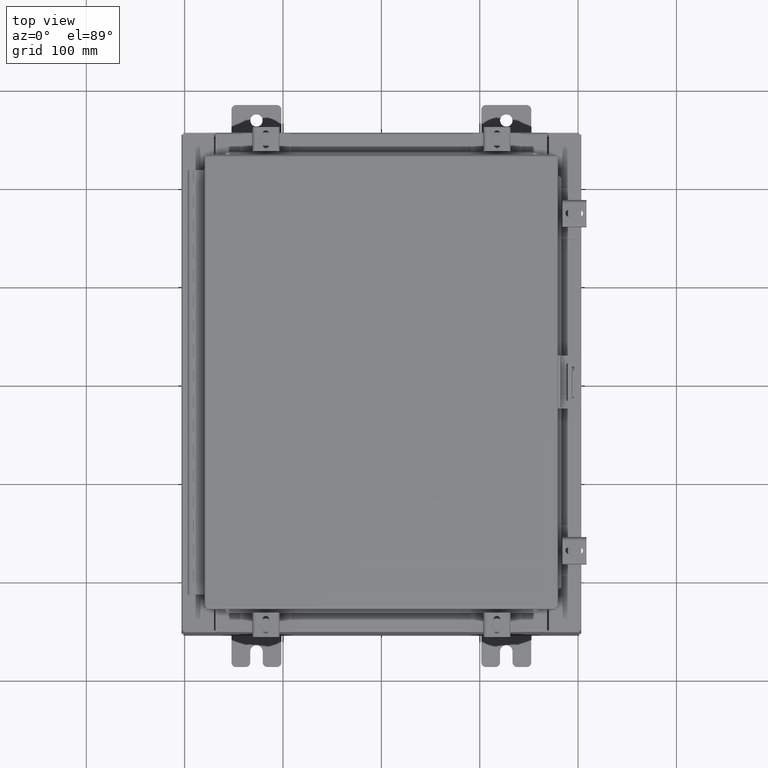
[diagram: clean part render]
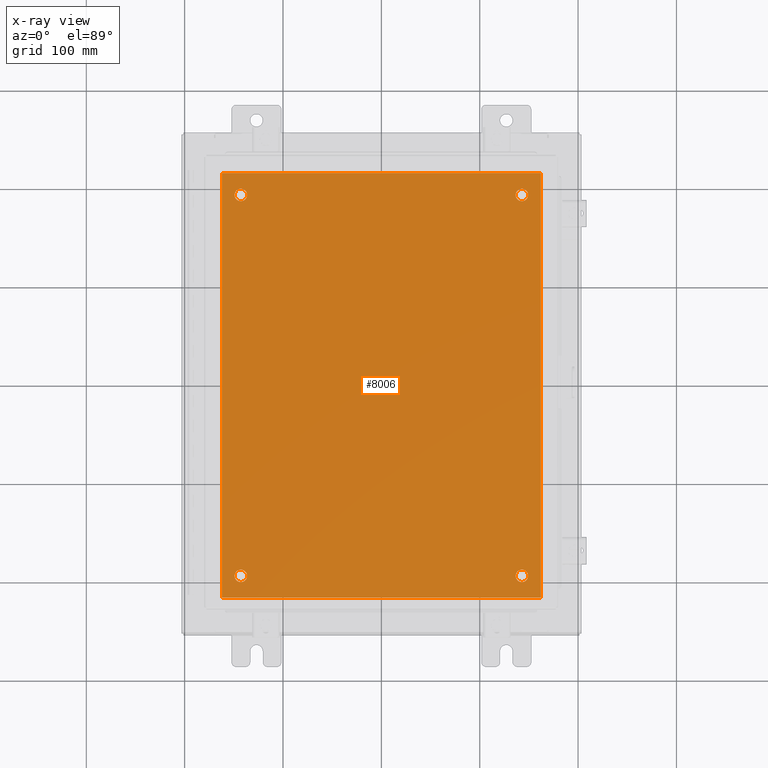
[diagram: x-ray — body ghosted, one internal face saturated and labeled with its STEP entity id]
A machine part, top view, then the same camera in x-ray: the body is ghosted and one INTERNAL B-rep face — a face not visible from any outside direction — is saturated and labeled: STEP entity #8006.
In plain terms, the highlighted planar face has unit normal (0, 0, -1).
Its self-contained STEP definition (entity closure, byte-faithful):
#309 = VERTEX_POINT ( 'NONE', #16712 ) ;
#627 = VERTEX_POINT ( 'NONE', #9467 ) ;
#851 = CIRCLE ( 'NONE', #9223, 0.2499999999999987000 ) ;
#1011 = ORIENTED_EDGE ( 'NONE', *, *, #15867, .T. ) ;
#1239 = CARTESIAN_POINT ( 'NONE',  ( 6.383000000000000900, 8.500000000000000000, -0.1039999999999999800 ) ) ;
#1277 = CARTESIAN_POINT ( 'NONE',  ( -5.625000000000000000, -7.625000000000001800, -0.1039999999999999800 ) ) ;
#1793 = CIRCLE ( 'NONE', #7359, 0.2499999999999998100 ) ;
#2144 = CARTESIAN_POINT ( 'NONE',  ( 5.625000000000004400, -7.625000000000000900, -0.1039999999999999800 ) ) ;
#2332 = EDGE_LOOP ( 'NONE', ( #1011, #3359 ) ) ;
#2489 = CIRCLE ( 'NONE', #3083, 0.2499999999999998100 ) ;
#2552 = CIRCLE ( 'NONE', #14553, 0.2499999999999998100 ) ;
#2636 = DIRECTION ( 'NONE',  ( -0.0000000000000000000, -0.0000000000000000000, 1.000000000000000000 ) ) ;
#2757 = FACE_BOUND ( 'NONE', #2332, .T. ) ;
#2817 = ORIENTED_EDGE ( 'NONE', *, *, #19691, .F. ) ;
#3083 = AXIS2_PLACEMENT_3D ( 'NONE', #4464, #20383, #6772 ) ;
#3359 = ORIENTED_EDGE ( 'NONE', *, *, #26517, .T. ) ;
#3566 = DIRECTION ( 'NONE',  ( -0.0000000000000000000, -0.0000000000000000000, 1.000000000000000000 ) ) ;
#4116 = ORIENTED_EDGE ( 'NONE', *, *, #28853, .T. ) ;
#4251 = CARTESIAN_POINT ( 'NONE',  ( 5.625000000000000000, 7.625000000000002700, -0.1039999999999999800 ) ) ;
#4424 = DIRECTION ( 'NONE',  ( -1.000000000000000000, 0.0000000000000000000, 0.0000000000000000000 ) ) ;
#4464 = CARTESIAN_POINT ( 'NONE',  ( -5.625000000000000000, 7.625000000000001800, -0.1039999999999999800 ) ) ;
#4573 = VERTEX_POINT ( 'NONE', #20140 ) ;
#5062 = EDGE_CURVE ( 'NONE', #6492, #4573, #2552, .T. ) ;
#6273 = AXIS2_PLACEMENT_3D ( 'NONE', #4251, #20146, #6552 ) ;
#6313 = LINE ( 'NONE', #19815, #25049 ) ;
#6492 = VERTEX_POINT ( 'NONE', #7915 ) ;
#6552 = DIRECTION ( 'NONE',  ( -1.000000000000000000, 0.0000000000000000000, 0.0000000000000000000 ) ) ;
#6772 = DIRECTION ( 'NONE',  ( -1.000000000000000000, 0.0000000000000000000, 0.0000000000000000000 ) ) ;
#6817 = VERTEX_POINT ( 'NONE', #27276 ) ;
#6879 = CARTESIAN_POINT ( 'NONE',  ( -6.382999999999998200, -8.499999999999998200, -0.1039999999999998100 ) ) ;
#7069 = CIRCLE ( 'NONE', #24972, 0.2499999999999987000 ) ;
#7199 = DIRECTION ( 'NONE',  ( 0.0000000000000000000, 0.0000000000000000000, -1.000000000000000000 ) ) ;
#7292 = EDGE_CURVE ( 'NONE', #19264, #26018, #14102, .T. ) ;
#7359 = AXIS2_PLACEMENT_3D ( 'NONE', #16200, #2636, #18543 ) ;
#7368 = DIRECTION ( 'NONE',  ( 1.000000000000000000, 0.0000000000000000000, 0.0000000000000000000 ) ) ;
#7616 = VERTEX_POINT ( 'NONE', #12019 ) ;
#7803 = AXIS2_PLACEMENT_3D ( 'NONE', #27575, #7199, #23088 ) ;
#7811 = EDGE_LOOP ( 'NONE', ( #21386, #27736 ) ) ;
#7915 = CARTESIAN_POINT ( 'NONE',  ( -5.375000000000000900, -7.625000000000001800, -0.1039999999999999800 ) ) ;
#8006 = ADVANCED_FACE ( 'NONE', ( #20929, #2757, #14810, #26255, #20177 ), #16171, .T. ) ;
#8089 = VECTOR ( 'NONE', #15541, 39.37007874015748100 ) ;
#8336 = DIRECTION ( 'NONE',  ( -0.0000000000000000000, -0.0000000000000000000, 1.000000000000000000 ) ) ;
#8659 = VECTOR ( 'NONE', #7368, 39.37007874015748100 ) ;
#9223 = AXIS2_PLACEMENT_3D ( 'NONE', #2144, #18018, #4424 ) ;
#9369 = CARTESIAN_POINT ( 'NONE',  ( -5.625000000000000000, 7.625000000000001800, -0.1039999999999999800 ) ) ;
#9467 = CARTESIAN_POINT ( 'NONE',  ( 5.874999999999999100, 7.625000000000002700, -0.1039999999999999800 ) ) ;
#10994 = ORIENTED_EDGE ( 'NONE', *, *, #20101, .T. ) ;
#11127 = EDGE_CURVE ( 'NONE', #6817, #17713, #2489, .T. ) ;
#11475 = CIRCLE ( 'NONE', #6273, 0.2499999999999987000 ) ;
#11626 = DIRECTION ( 'NONE',  ( -1.000000000000000000, 0.0000000000000000000, 0.0000000000000000000 ) ) ;
#12019 = CARTESIAN_POINT ( 'NONE',  ( 6.383000000000000900, -8.499999999999998200, -0.1039999999999999800 ) ) ;
#12499 = VECTOR ( 'NONE', #17394, 39.37007874015748100 ) ;
#12570 = DIRECTION ( 'NONE',  ( -0.0000000000000000000, -0.0000000000000000000, 1.000000000000000000 ) ) ;
#13051 = DIRECTION ( 'NONE',  ( 0.0000000000000000000, -1.000000000000000000, 0.0000000000000000000 ) ) ;
#13116 = ORIENTED_EDGE ( 'NONE', *, *, #11127, .T. ) ;
#13295 = CARTESIAN_POINT ( 'NONE',  ( -6.499999999999998200, 8.500000000000000000, -0.1039999999999999800 ) ) ;
#14102 = LINE ( 'NONE', #13295, #8089 ) ;
#14432 = ORIENTED_EDGE ( 'NONE', *, *, #21352, .F. ) ;
#14553 = AXIS2_PLACEMENT_3D ( 'NONE', #1277, #3566, #15965 ) ;
#14810 = FACE_BOUND ( 'NONE', #26331, .T. ) ;
#15388 = LINE ( 'NONE', #18690, #8659 ) ;
#15540 = ORIENTED_EDGE ( 'NONE', *, *, #22412, .T. ) ;
#15541 = DIRECTION ( 'NONE',  ( -1.000000000000000000, -0.0000000000000000000, -0.0000000000000000000 ) ) ;
#15867 = EDGE_CURVE ( 'NONE', #309, #23147, #851, .T. ) ;
#15965 = DIRECTION ( 'NONE',  ( -1.000000000000000000, 0.0000000000000000000, 0.0000000000000000000 ) ) ;
#16171 = PLANE ( 'NONE',  #7803 ) ;
#16200 = CARTESIAN_POINT ( 'NONE',  ( -5.625000000000000000, -7.625000000000001800, -0.1039999999999999800 ) ) ;
#16532 = ORIENTED_EDGE ( 'NONE', *, *, #23847, .F. ) ;
#16712 = CARTESIAN_POINT ( 'NONE',  ( 5.875000000000003600, -7.625000000000000900, -0.1039999999999999800 ) ) ;
#17394 = DIRECTION ( 'NONE',  ( 0.0000000000000000000, 1.000000000000000000, 0.0000000000000000000 ) ) ;
#17713 = VERTEX_POINT ( 'NONE', #21795 ) ;
#18018 = DIRECTION ( 'NONE',  ( -0.0000000000000000000, -0.0000000000000000000, 1.000000000000000000 ) ) ;
#18543 = DIRECTION ( 'NONE',  ( -1.000000000000000000, 0.0000000000000000000, 0.0000000000000000000 ) ) ;
#18690 = CARTESIAN_POINT ( 'NONE',  ( -6.499999999999998200, -8.499999999999998200, -0.1039999999999999800 ) ) ;
#19264 = VERTEX_POINT ( 'NONE', #1239 ) ;
#19691 = EDGE_CURVE ( 'NONE', #23075, #7616, #15388, .T. ) ;
#19698 = CARTESIAN_POINT ( 'NONE',  ( 6.383000000000002700, -8.499999999999998200, -0.1039999999999998100 ) ) ;
#19815 = CARTESIAN_POINT ( 'NONE',  ( -6.382999999999998200, 8.500000000000000000, -0.1039999999999998100 ) ) ;
#20101 = EDGE_CURVE ( 'NONE', #27701, #627, #11475, .T. ) ;
#20140 = CARTESIAN_POINT ( 'NONE',  ( -5.875000000000000000, -7.625000000000001800, -0.1039999999999999800 ) ) ;
#20146 = DIRECTION ( 'NONE',  ( -0.0000000000000000000, -0.0000000000000000000, 1.000000000000000000 ) ) ;
#20177 = FACE_OUTER_BOUND ( 'NONE', #21361, .T. ) ;
#20383 = DIRECTION ( 'NONE',  ( -0.0000000000000000000, -0.0000000000000000000, 1.000000000000000000 ) ) ;
#20929 = FACE_BOUND ( 'NONE', #7811, .T. ) ;
#21352 = EDGE_CURVE ( 'NONE', #7616, #19264, #24624, .T. ) ;
#21361 = EDGE_LOOP ( 'NONE', ( #2817, #16532, #24896, #14432 ) ) ;
#21386 = ORIENTED_EDGE ( 'NONE', *, *, #5062, .T. ) ;
#21795 = CARTESIAN_POINT ( 'NONE',  ( -5.375000000000000900, 7.625000000000001800, -0.1039999999999999800 ) ) ;
#21956 = CARTESIAN_POINT ( 'NONE',  ( 5.625000000000000000, 7.625000000000002700, -0.1039999999999999800 ) ) ;
#22412 = EDGE_CURVE ( 'NONE', #17713, #6817, #23143, .T. ) ;
#23075 = VERTEX_POINT ( 'NONE', #6879 ) ;
#23088 = DIRECTION ( 'NONE',  ( -1.000000000000000000, 0.0000000000000000000, -0.0000000000000000000 ) ) ;
#23102 = AXIS2_PLACEMENT_3D ( 'NONE', #9369, #25315, #11626 ) ;
#23143 = CIRCLE ( 'NONE', #23102, 0.2499999999999998100 ) ;
#23147 = VERTEX_POINT ( 'NONE', #25376 ) ;
#23847 = EDGE_CURVE ( 'NONE', #26018, #23075, #6313, .T. ) ;
#24262 = DIRECTION ( 'NONE',  ( -1.000000000000000000, 0.0000000000000000000, 0.0000000000000000000 ) ) ;
#24624 = LINE ( 'NONE', #19698, #12499 ) ;
#24896 = ORIENTED_EDGE ( 'NONE', *, *, #7292, .F. ) ;
#24972 = AXIS2_PLACEMENT_3D ( 'NONE', #21956, #8336, #24262 ) ;
#25046 = CARTESIAN_POINT ( 'NONE',  ( -6.382999999999998200, 8.500000000000000000, -0.1039999999999998100 ) ) ;
#25049 = VECTOR ( 'NONE', #13051, 39.37007874015748100 ) ;
#25085 = EDGE_LOOP ( 'NONE', ( #15540, #13116 ) ) ;
#25315 = DIRECTION ( 'NONE',  ( -0.0000000000000000000, -0.0000000000000000000, 1.000000000000000000 ) ) ;
#25376 = CARTESIAN_POINT ( 'NONE',  ( 5.375000000000006200, -7.625000000000000900, -0.1039999999999999800 ) ) ;
#26018 = VERTEX_POINT ( 'NONE', #25046 ) ;
#26219 = CARTESIAN_POINT ( 'NONE',  ( 5.625000000000004400, -7.625000000000000900, -0.1039999999999999800 ) ) ;
#26255 = FACE_BOUND ( 'NONE', #25085, .T. ) ;
#26331 = EDGE_LOOP ( 'NONE', ( #4116, #10994 ) ) ;
#26517 = EDGE_CURVE ( 'NONE', #23147, #309, #27412, .T. ) ;
#26797 = AXIS2_PLACEMENT_3D ( 'NONE', #26219, #12570, #28520 ) ;
#26868 = EDGE_CURVE ( 'NONE', #4573, #6492, #1793, .T. ) ;
#27276 = CARTESIAN_POINT ( 'NONE',  ( -5.875000000000000000, 7.625000000000001800, -0.1039999999999999800 ) ) ;
#27412 = CIRCLE ( 'NONE', #26797, 0.2499999999999987000 ) ;
#27575 = CARTESIAN_POINT ( 'NONE',  ( 0.0000000000000000000, 0.0000000000000000000, -0.1039999999999999800 ) ) ;
#27701 = VERTEX_POINT ( 'NONE', #29095 ) ;
#27736 = ORIENTED_EDGE ( 'NONE', *, *, #26868, .T. ) ;
#28520 = DIRECTION ( 'NONE',  ( -1.000000000000000000, 0.0000000000000000000, 0.0000000000000000000 ) ) ;
#28853 = EDGE_CURVE ( 'NONE', #627, #27701, #7069, .T. ) ;
#29095 = CARTESIAN_POINT ( 'NONE',  ( 5.375000000000001800, 7.625000000000002700, -0.1039999999999999800 ) ) ;